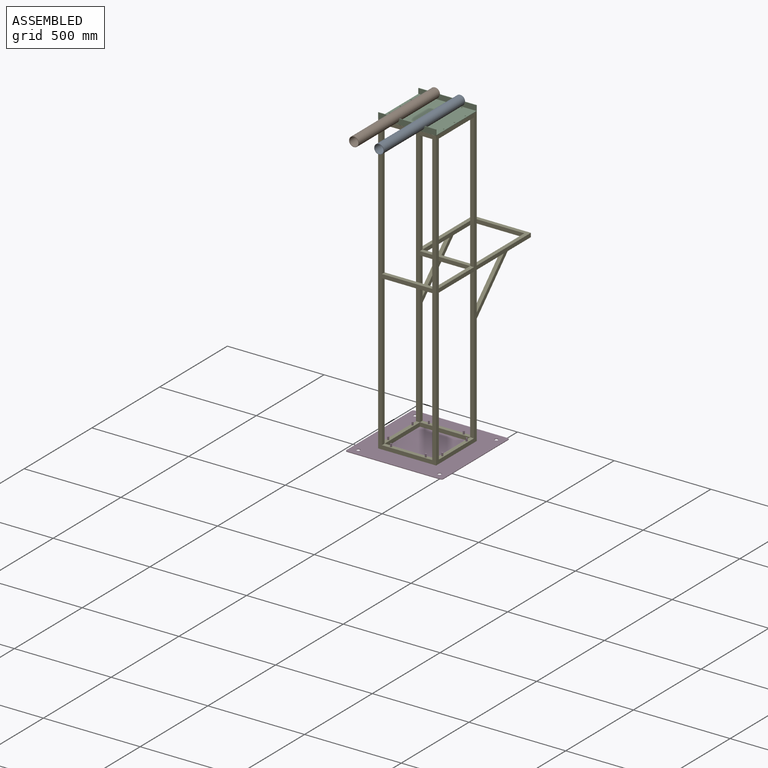
[diagram: assembled view]
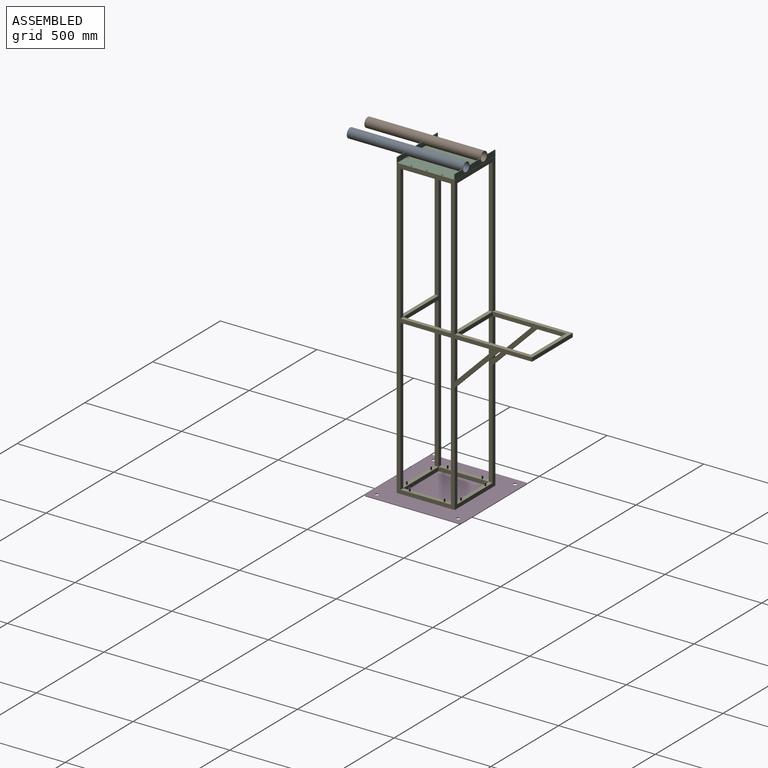
[diagram: assembled view, second angle]
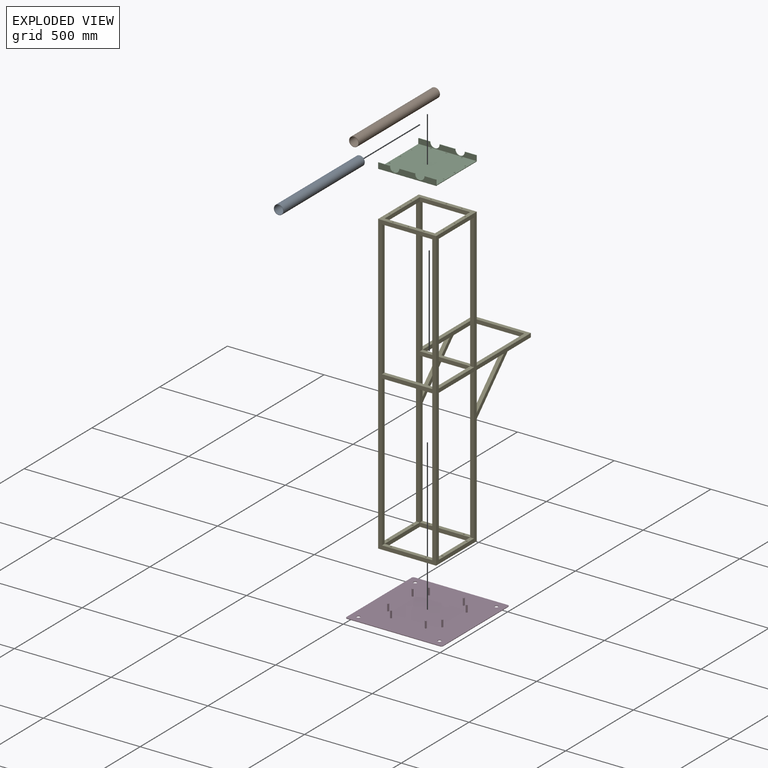
[diagram: exploded view]
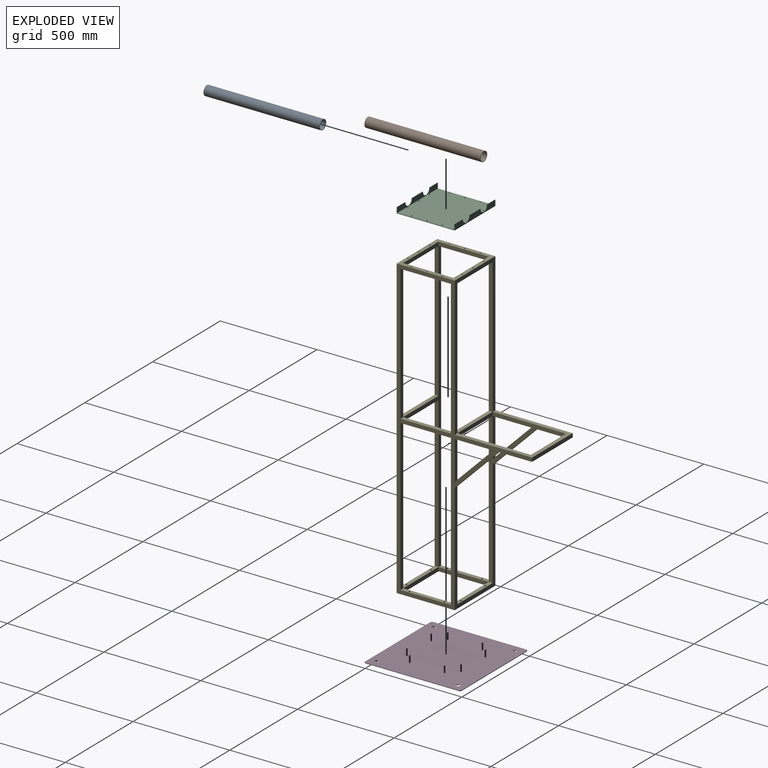
[diagram: exploded view, second angle]
ASSEMBLY  parts=5 mates=10
PART A: 4 faces, bbox 50x600x50 mm
  f0: cylinder r=23mm len=600mm, axis (0,-1,0), area 86708mm2, adj f2,f3
  f1: cylinder r=25mm len=600mm, axis (0,-1,0), area 94247.8mm2, adj f2,f3
  f2: plane 50x50mm, normal (0,1,0), area 301.6mm2, adj f0,f1
  f3: plane 50x50mm, normal (0,-1,0), area 301.6mm2, adj f0,f1
PART B: same geometry as A
PART C: 34 faces, bbox 300x300x30 mm
  f0: plane 80x3mm, normal (0,0,1), area 240mm2, adj f10,f11,f16,f17
  f1: plane 60x3mm, normal (0,0,1), area 180mm2, adj f7,f10,f11,f16
  f2: plane 80x3mm, normal (0,0,1), area 240mm2, adj f9,f12,f14,f15
  f3: plane 60x3mm, normal (0,0,1), area 180mm2, adj f7,f9,f12,f14
  f4: plane 60x3mm, normal (0,0,1), area 180mm2, adj f5,f10,f11,f17
  f5: plane 300x30mm, normal (0,-1,0), area 1062mm2, adj f4,f6,f8,f9,f10,f11,f12,f13
  f6: plane 300x298mm, normal (0,0,-1), area 88938.2mm2, adj f5,f7,f18,f19,f20,f21,f22,f23
  f7: plane 300x30mm, normal (0,1,0), area 1062mm2, adj f1,f3,f6,f9,f10,f11,f12,f13
  f8: plane 60x3mm, normal (0,0,1), area 180mm2, adj f5,f9,f12,f15
  f9: plane 300x29mm, normal (-1,0,0), area 6736.5mm2, adj f2,f3,f5,f7,f8,f14,f15,f33
  f10: plane 300x29mm, normal (1,0,0), area 6736.5mm2, adj f0,f1,f4,f5,f7,f16,f17,f32
  f11: plane 300x26mm, normal (-1,0,0), area 5836.5mm2, adj f0,f1,f4,f5,f7,f16,f17,f30
  f12: plane 300x26mm, normal (1,0,0), area 5836.5mm2, adj f2,f3,f5,f7,f8,f14,f15,f31
  f13: plane 300x292mm, normal (0,0,1), area 87138.2mm2, adj f5,f7,f18,f19,f20,f21,f22,f23
  f14: cylinder r=25mm len=50mm, axis (1,0,0), area 235.6mm2, adj f2,f3,f9,f12
  f15: cylinder r=25mm len=50mm, axis (1,0,0), area 235.6mm2, adj f2,f8,f9,f12
  f16: cylinder r=25mm len=50mm, axis (1,0,0), area 235.6mm2, adj f0,f1,f10,f11
  f17: cylinder r=25mm len=50mm, axis (1,0,0), area 235.6mm2, adj f0,f4,f10,f11
  f18: cylinder r=3.5mm len=7mm, axis (0,0,-1), area 66mm2, adj f6,f13
  f19: cylinder r=3.5mm len=7mm, axis (0,0,-1), area 66mm2, adj f6,f13
  f20: cylinder r=3.5mm len=7mm, axis (0,0,-1), area 66mm2, adj f6,f13
  f21: cylinder r=3.5mm len=7mm, axis (0,0,-1), area 66mm2, adj f6,f13
  f22: cylinder r=3.5mm len=7mm, axis (0,0,-1), area 66mm2, adj f6,f13
  f23: cylinder r=3.5mm len=7mm, axis (0,0,-1), area 66mm2, adj f6,f13
  f24: cylinder r=3.5mm len=7mm, axis (0,0,-1), area 66mm2, adj f6,f13
  f25: cylinder r=3.5mm len=7mm, axis (0,0,-1), area 66mm2, adj f6,f13
  f26: cylinder r=3.5mm len=7mm, axis (0,0,-1), area 66mm2, adj f6,f13
  f27: cylinder r=3.5mm len=7mm, axis (0,0,-1), area 66mm2, adj f6,f13
  f28: cylinder r=3.5mm len=7mm, axis (0,0,-1), area 66mm2, adj f6,f13
  f29: cylinder r=3.5mm len=7mm, axis (0,0,-1), area 66mm2, adj f6,f13
  f30: cylinder r=1mm len=300mm, axis (0,-1,0), area 471.2mm2, adj f5,f7,f11,f13
  f31: cylinder r=1mm len=300mm, axis (0,1,0), area 471.2mm2, adj f5,f7,f12,f13
  f32: cylinder r=1mm len=300mm, axis (0,1,0), area 471.2mm2, adj f5,f6,f7,f10
  f33: cylinder r=1mm len=300mm, axis (0,-1,0), area 471.2mm2, adj f5,f6,f7,f9
PART D: 30 faces, bbox 500x500x38 mm
  f0: plane 500x500mm, normal (0,0,1), area 248494.2mm2, adj f2,f3,f4,f5,f6,f7,f8,f9
  f1: plane 500x500mm, normal (0,0,-1), area 248896.3mm2, adj f2,f3,f4,f5,f6,f7,f8,f9
  f2: plane 480x3mm, normal (-1,0,0), area 1440mm2, adj f0,f1,f6,f9
  f3: plane 480x3mm, normal (0,-1,0), area 1440mm2, adj f0,f1,f6,f7
  f4: plane 480x3mm, normal (1,0,0), area 1440mm2, adj f0,f1,f7,f8
  f5: plane 480x3mm, normal (0,1,0), area 1440mm2, adj f0,f1,f8,f9
  f6: cylinder r=10mm len=10mm, axis (0,0,1), area 47.1mm2, adj f0,f1,f2,f3
  f7: cylinder r=10mm len=10mm, axis (0,0,-1), area 47.1mm2, adj f0,f1,f3,f4
  f8: cylinder r=10mm len=10mm, axis (0,0,1), area 47.1mm2, adj f0,f1,f4,f5
  f9: cylinder r=10mm len=10mm, axis (0,0,-1), area 47.1mm2, adj f0,f1,f2,f5
  f10: cylinder r=9mm len=18mm, axis (0,0,1), area 169.6mm2, adj f0,f1
  f11: cylinder r=9mm len=18mm, axis (0,0,1), area 169.6mm2, adj f0,f1
  f12: cylinder r=9mm len=18mm, axis (0,0,1), area 169.6mm2, adj f0,f1
  f13: cylinder r=9mm len=18mm, axis (0,0,1), area 169.6mm2, adj f0,f1
  f14: cylinder r=4mm len=35mm, axis (0,0,-1), area 879.6mm2, adj f0,f15
  f15: plane 8x8mm, normal (0,0,1), area 50.3mm2, adj f14
  f16: cylinder r=4mm len=35mm, axis (0,0,-1), area 879.6mm2, adj f0,f17
  f17: plane 8x8mm, normal (0,0,1), area 50.3mm2, adj f16
  f18: cylinder r=4mm len=35mm, axis (0,0,-1), area 879.6mm2, adj f0,f19
  f19: plane 8x8mm, normal (0,0,1), area 50.3mm2, adj f18
  f20: cylinder r=4mm len=35mm, axis (0,0,-1), area 879.6mm2, adj f0,f21
  f21: plane 8x8mm, normal (0,0,1), area 50.3mm2, adj f20
  f22: cylinder r=4mm len=35mm, axis (0,0,-1), area 879.6mm2, adj f0,f23
  f23: plane 8x8mm, normal (0,0,1), area 50.3mm2, adj f22
  f24: cylinder r=4mm len=35mm, axis (0,0,-1), area 879.6mm2, adj f0,f25
  f25: plane 8x8mm, normal (0,0,1), area 50.3mm2, adj f24
  f26: cylinder r=4mm len=35mm, axis (0,0,-1), area 879.6mm2, adj f0,f27
  f27: plane 8x8mm, normal (0,0,1), area 50.3mm2, adj f26
  f28: cylinder r=4mm len=35mm, axis (0,0,-1), area 879.6mm2, adj f0,f29
  f29: plane 8x8mm, normal (0,0,1), area 50.3mm2, adj f28
PART E: 77 faces, bbox 300x1540x700 mm
  f0: plane 700x20mm, normal (1,0,0), area 14000mm2, adj f23,f27,f34,f55
  f1: plane 780x20mm, normal (-1,0,0), area 15600mm2, adj f17,f23,f29,f56
  f2: plane 700x20mm, normal (-1,0,0), area 14000mm2, adj f3,f23,f34,f55
  f3: plane 700x20mm, normal (0,0,1), area 14000mm2, adj f2,f24,f35,f53
  f4: plane 780x20mm, normal (0,0,-1), area 15600mm2, adj f15,f24,f33,f54
  f5: plane 1500x280mm, normal (0,0,-1), area 35200mm2, adj f13,f18,f22,f30,f32,f36,f43,f44
  f6: plane 200x20mm, normal (0,1,0), area 4000mm2, adj f12,f24,f33,f52
  f7: plane 571.72x300mm, normal (0,0,1), area 28068.6mm2, adj f16,f22,f24,f26,f32,f33,f50,f51
  f8: plane 200x20mm, normal (0,0,1), area 4000mm2, adj f22,f32,f45,f49
  f9: plane 300x171.72mm, normal (0,1,0), area 12068.6mm2, adj f22,f24,f32,f33,f47,f48,f50,f51
  f10: plane 720x300mm, normal (0,0,1), area 34000mm2, adj f13,f14,f22,f24,f41,f42,f46
  f11: plane 260x20mm, normal (0,0,1), area 5200mm2, adj f32,f33,f43,f44
  f12: plane 200x20mm, normal (0,0,1), area 4000mm2, adj f6,f24,f33,f52
  f13: plane 700x20mm, normal (1,0,0), area 14000mm2, adj f5,f10,f42,f44
  f14: plane 700x20mm, normal (-1,0,0), area 14000mm2, adj f10,f31,f42,f44
  f15: plane 260x20mm, normal (0,-1,0), area 5072.8mm2, adj f4,f21,f24,f29,f59,f60
  f16: plane 260x20mm, normal (0,-1,0), area 5072.8mm2, adj f7,f20,f32,f33,f57,f58
  f17: plane 260x20mm, normal (0,-1,0), area 5072.8mm2, adj f1,f23,f25,f28,f61,f62
  f18: plane 260x20mm, normal (0,-1,0), area 5072.8mm2, adj f5,f19,f22,f27,f63,f64
  f19: plane 260x20mm, normal (1,0,0), area 5200mm2, adj f18,f20,f25,f26
  f20: plane 260x20mm, normal (0,0,-1), area 5200mm2, adj f16,f19,f21,f26
  f21: plane 260x20mm, normal (-1,0,0), area 5200mm2, adj f15,f20,f25,f26
  f22: plane 1540x700mm, normal (-1,0,0), area 86056.9mm2, adj f5,f7,f8,f9,f10,f18,f23,f26
  f23: plane 1540x300mm, normal (0,0,-1), area 77200mm2, adj f0,f1,f2,f17,f22,f24,f26,f28
  f24: plane 1540x700mm, normal (1,0,0), area 91256.9mm2, adj f3,f4,f6,f7,f9,f10,f12,f15
  f25: plane 260x20mm, normal (0,0,1), area 5200mm2, adj f17,f19,f21,f26
  f26: plane 300x300mm, normal (0,1,0), area 21891.1mm2, adj f7,f19,f20,f21,f22,f23,f24,f25
  f27: plane 1500x280mm, normal (0,0,1), area 35200mm2, adj f0,f18,f22,f28,f30,f36,f55,f56
  f28: plane 780x20mm, normal (1,0,0), area 15600mm2, adj f17,f23,f27,f56
  f29: plane 780x20mm, normal (0,0,1), area 15600mm2, adj f1,f15,f24,f54
  f30: plane 260x20mm, normal (-1,0,0), area 5200mm2, adj f5,f27,f53,f54
  f31: plane 700x20mm, normal (0,0,-1), area 14000mm2, adj f14,f24,f35,f53
  f32: plane 800x400mm, normal (1,0,0), area 29256.9mm2, adj f5,f7,f8,f9,f11,f16,f43,f45
  f33: plane 800x400mm, normal (-1,0,0), area 29256.9mm2, adj f4,f6,f7,f9,f11,f12,f16,f43
  f34: plane 260x20mm, normal (0,1,0), area 5084.5mm2, adj f0,f2,f23,f37,f70,f71,f72
  f35: plane 260x20mm, normal (0,1,0), area 5084.5mm2, adj f3,f24,f31,f40,f68,f69,f73
  f36: plane 260x20mm, normal (0,1,0), area 5084.5mm2, adj f5,f22,f27,f38,f74,f75,f76
  f37: plane 260x20mm, normal (0,0,1), area 5200mm2, adj f34,f38,f40,f41
  f38: plane 260x20mm, normal (1,0,0), area 5200mm2, adj f36,f37,f39,f41
  f39: plane 260x20mm, normal (0,0,-1), area 5200mm2, adj f38,f40,f41,f42
  f40: plane 260x20mm, normal (-1,0,0), area 5200mm2, adj f35,f37,f39,f41
  f41: plane 300x300mm, normal (0,-1,0), area 21938.2mm2, adj f10,f22,f23,f24,f37,f38,f39,f40
  f42: plane 260x20mm, normal (0,1,0), area 5084.5mm2, adj f10,f13,f14,f39,f65,f66,f67
  f43: plane 260x20mm, normal (0,1,0), area 5200mm2, adj f5,f11,f32,f33
  f44: plane 260x20mm, normal (0,-1,0), area 5200mm2, adj f5,f11,f13,f14
  f45: plane 200x20mm, normal (0,1,0), area 4000mm2, adj f8,f22,f32,f49
  f46: plane 400x300mm, normal (0,-1,0), area 21200mm2, adj f10,f22,f24,f32,f33,f47,f48
  f47: plane 300x20mm, normal (0,0,1), area 6000mm2, adj f9,f22,f24,f46
  f48: plane 260x20mm, normal (0,0,-1), area 5200mm2, adj f9,f32,f33,f46
  f49: plane 200x200mm, normal (0,-0.71,-0.71), area 5656.9mm2, adj f8,f22,f32,f45
  f50: plane 228.28x228.28mm, normal (0,0.71,0.71), area 6456.9mm2, adj f7,f9,f22,f32
  f51: plane 228.28x228.28mm, normal (0,0.71,0.71), area 6456.9mm2, adj f7,f9,f24,f33
  f52: plane 200x200mm, normal (0,-0.71,-0.71), area 5656.9mm2, adj f6,f12,f24,f33
  f53: plane 260x20mm, normal (0,-1,0), area 5200mm2, adj f3,f24,f30,f31
  f54: plane 260x20mm, normal (0,1,0), area 5200mm2, adj f4,f24,f29,f30
  f55: plane 260x20mm, normal (0,-1,0), area 5200mm2, adj f0,f2,f23,f27
  f56: plane 260x20mm, normal (0,1,0), area 5200mm2, adj f1,f23,f27,f28
  f57: cylinder r=4.5mm len=20mm, axis (0,-1,0), area 565.5mm2, adj f16,f26
  f58: cylinder r=4.5mm len=20mm, axis (0,-1,0), area 565.5mm2, adj f16,f26
  f59: cylinder r=4.5mm len=20mm, axis (0,-1,0), area 565.5mm2, adj f15,f26
  f60: cylinder r=4.5mm len=20mm, axis (0,-1,0), area 565.5mm2, adj f15,f26
  f61: cylinder r=4.5mm len=20mm, axis (0,-1,0), area 565.5mm2, adj f17,f26
  f62: cylinder r=4.5mm len=20mm, axis (0,-1,0), area 565.5mm2, adj f17,f26
  f63: cylinder r=4.5mm len=20mm, axis (0,-1,0), area 565.5mm2, adj f18,f26
  f64: cylinder r=4.5mm len=20mm, axis (0,-1,0), area 565.5mm2, adj f18,f26
  f65: cylinder r=3.5mm len=20mm, axis (0,-1,0), area 439.8mm2, adj f41,f42
  f66: cylinder r=3.5mm len=20mm, axis (0,-1,0), area 439.8mm2, adj f41,f42
  f67: cylinder r=3.5mm len=20mm, axis (0,-1,0), area 439.8mm2, adj f41,f42
  f68: cylinder r=3.5mm len=20mm, axis (0,-1,0), area 439.8mm2, adj f35,f41
  f69: cylinder r=3.5mm len=20mm, axis (0,-1,0), area 439.8mm2, adj f35,f41
  f70: cylinder r=3.5mm len=20mm, axis (0,-1,0), area 439.8mm2, adj f34,f41
  f71: cylinder r=3.5mm len=20mm, axis (0,-1,0), area 439.8mm2, adj f34,f41
  f72: cylinder r=3.5mm len=20mm, axis (0,-1,0), area 439.8mm2, adj f34,f41
  f73: cylinder r=3.5mm len=20mm, axis (0,-1,0), area 439.8mm2, adj f35,f41
  f74: cylinder r=3.5mm len=20mm, axis (0,-1,0), area 439.8mm2, adj f36,f41
  f75: cylinder r=3.5mm len=20mm, axis (0,-1,0), area 439.8mm2, adj f36,f41
  f76: cylinder r=3.5mm len=20mm, axis (0,-1,0), area 439.8mm2, adj f36,f41
PLACE A rot(axis=(0,0,1),0deg) t=(-175,-700,1573)mm
PLACE B rot(axis=(0,-1,0),90deg) t=(-305,-700,1573)mm
PLACE C rot(axis=(0,0,-1),90deg) t=(-390,-400,1543)mm
PLACE D rot(axis=(1,0,0),0deg) t=(-490,-500,0)mm
PLACE E rot(axis=(-1,0,0),90deg) t=(-390,-400,3)mm
MATE cylindrical E.f69 <-> C.f24  axis (0,0,1) through (-100,-170,1533)mm
MATE slider E.f62 <-> D.f20  axis (0,0,1) through (-330,-390,23)mm
MATE planar E.f41 <-> C.f6  axis (0,0,1) through (-240,-250,1543)mm
MATE slider E.f57 <-> D.f14  axis (0,0,1) through (-150,-110,23)mm
MATE slider A.f1 <-> C.f14  axis (0,-1,0) through (-175,-400,1573)mm
MATE cylindrical E.f75 <-> C.f20  axis (0,0,-1) through (-380,-330,1523)mm
MATE planar B.f1 <-> C.f9  axis (0,1,0) through (-305,-100,1573)mm
MATE planar D.f0 <-> E.f26  axis (0,0,1) through (10,-250,3)mm
MATE planar C.f9 <-> A.f1  axis (0,1,0) through (-120,-100,1573)mm
MATE slider B.f1 <-> C.f15  axis (0,-1,0) through (-305,-400,1573)mm
